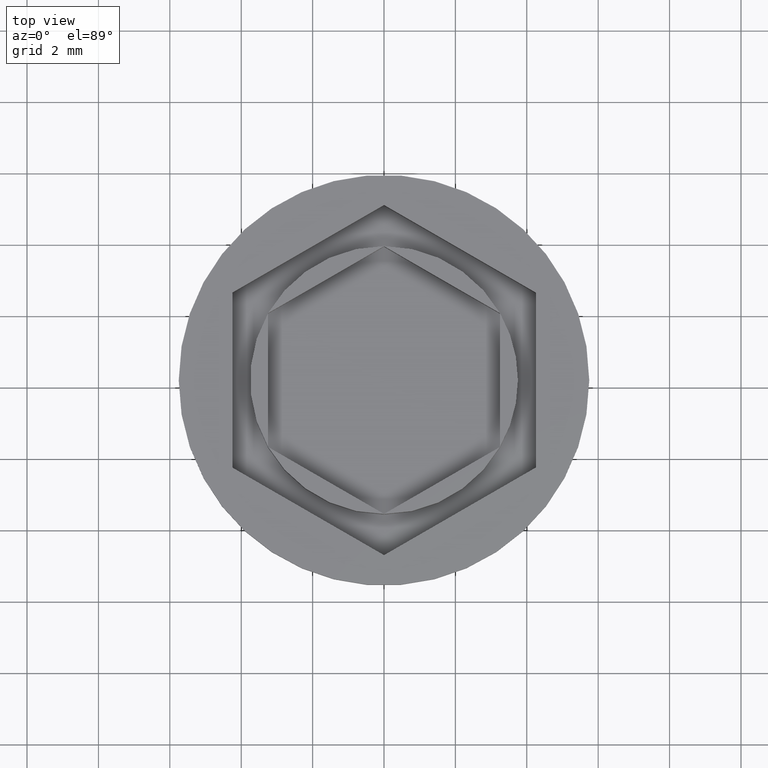
[diagram: clean part render]
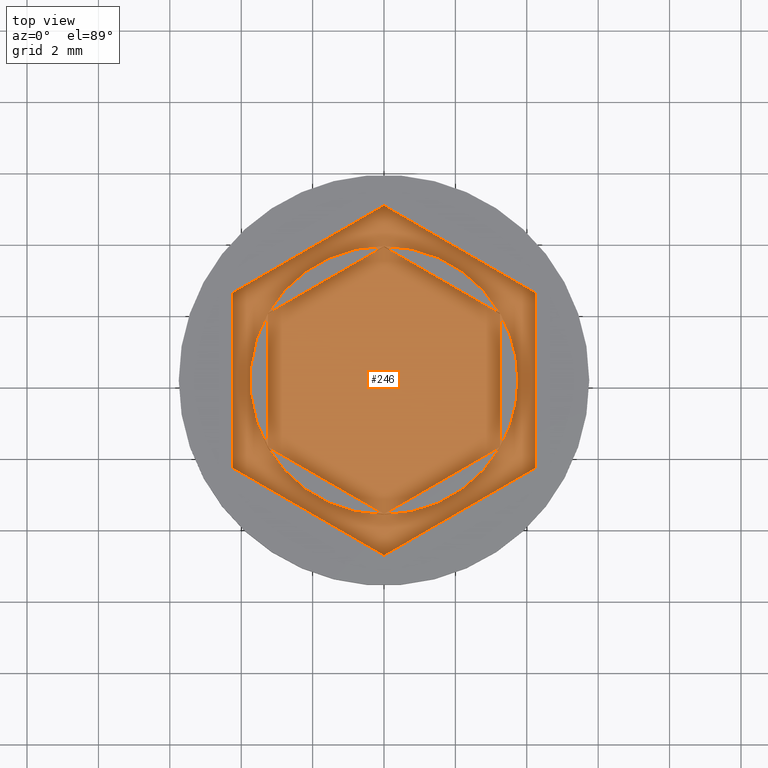
[diagram: same view with one face highlighted and labeled with its STEP entity id]
A machine part, top view. The second image highlights one B-rep face of the part: STEP entity #246.
In plain terms, the highlighted planar face has unit normal (-0, 0, 1).
Its self-contained STEP definition (entity closure, byte-faithful):
#9 = VECTOR ( 'NONE', #1991, 1000.000000000000000 ) ;
#12 = CIRCLE ( 'NONE', #977, 3.750000000000000444 ) ;
#21 = PLANE ( 'NONE',  #844 ) ;
#48 = ORIENTED_EDGE ( 'NONE', *, *, #1146, .T. ) ;
#51 = CARTESIAN_POINT ( 'NONE',  ( 0.000000000000000000, 0.000000000000000000, -1.000000000000000000 ) ) ;
#57 = CARTESIAN_POINT ( 'NONE',  ( -3.245185174601965095, -1.879168215605941050, -1.000000000000000888 ) ) ;
#61 = EDGE_CURVE ( 'NONE', #1672, #1626, #134, .T. ) ;
#63 = CARTESIAN_POINT ( 'NONE',  ( -3.250000000000000444, -1.876388374866284403, -1.000000000000000888 ) ) ;
#85 = VERTEX_POINT ( 'NONE', #1964 ) ;
#88 = CARTESIAN_POINT ( 'NONE',  ( -3.250000000000000444, 1.870828693386970887, -1.000000000000000888 ) ) ;
#100 = VECTOR ( 'NONE', #1044, 1000.000000000000000 ) ;
#102 = AXIS2_PLACEMENT_3D ( 'NONE', #859, #1471, #1445 ) ;
#114 = VECTOR ( 'NONE', #1477, 1000.000000000000000 ) ;
#123 = DIRECTION ( 'NONE',  ( 0.000000000000000000, 1.000000000000000000, -0.000000000000000000 ) ) ;
#134 = LINE ( 'NONE', #611, #100 ) ;
#174 = FACE_BOUND ( 'NONE', #400, .T. ) ;
#175 = CARTESIAN_POINT ( 'NONE',  ( 4.169697677648385935E-16, -3.752776749732567918, -1.000000000000000888 ) ) ;
#205 = EDGE_LOOP ( 'NONE', ( #1869, #1895, #1320 ) ) ;
#208 = VERTEX_POINT ( 'NONE', #1718 ) ;
#209 = CARTESIAN_POINT ( 'NONE',  ( 4.250000000000000000, -2.453738644055909024, -1.000000000000000000 ) ) ;
#219 = EDGE_CURVE ( 'NONE', #208, #1467, #722, .T. ) ;
#243 = CARTESIAN_POINT ( 'NONE',  ( -0.004814825398034329462, -3.749996908992911493, -1.000000000000000888 ) ) ;
#246 = ADVANCED_FACE ( 'NONE', ( #1887, #1248, #939, #1556, #1697, #174, #355 ), #21, .T. ) ;
#260 = ORIENTED_EDGE ( 'NONE', *, *, #894, .F. ) ;
#274 = LINE ( 'NONE', #1502, #595 ) ;
#282 = CARTESIAN_POINT ( 'NONE',  ( 0.000000000000000000, 0.000000000000000000, -1.000000000000000000 ) ) ;
#297 = AXIS2_PLACEMENT_3D ( 'NONE', #480, #1238, #323 ) ;
#319 = VERTEX_POINT ( 'NONE', #988 ) ;
#323 = DIRECTION ( 'NONE',  ( 1.000000000000000000, 0.000000000000000000, 0.000000000000000000 ) ) ;
#334 = VECTOR ( 'NONE', #363, 1000.000000000000000 ) ;
#338 = AXIS2_PLACEMENT_3D ( 'NONE', #418, #1493, #1048 ) ;
#340 = DIRECTION ( 'NONE',  ( -0.000000000000000000, 0.000000000000000000, 1.000000000000000000 ) ) ;
#355 = FACE_OUTER_BOUND ( 'NONE', #1604, .T. ) ;
#363 = DIRECTION ( 'NONE',  ( -0.8660254037844387076, 0.4999999999999999445, 0.000000000000000000 ) ) ;
#368 = VECTOR ( 'NONE', #586, 1000.000000000000114 ) ;
#396 = ORIENTED_EDGE ( 'NONE', *, *, #1036, .F. ) ;
#400 = EDGE_LOOP ( 'NONE', ( #1128, #1983 ) ) ;
#405 = ORIENTED_EDGE ( 'NONE', *, *, #61, .T. ) ;
#418 = CARTESIAN_POINT ( 'NONE',  ( 0.000000000000000000, 0.000000000000000000, -1.000000000000000000 ) ) ;
#427 = VECTOR ( 'NONE', #442, 1000.000000000000114 ) ;
#442 = DIRECTION ( 'NONE',  ( 0.8660254037844387076, 0.4999999999999998890, 0.000000000000000000 ) ) ;
#446 = VERTEX_POINT ( 'NONE', #243 ) ;
#447 = DIRECTION ( 'NONE',  ( 0.8660254037844388186, -0.4999999999999997224, 0.000000000000000000 ) ) ;
#480 = CARTESIAN_POINT ( 'NONE',  ( 0.000000000000000000, 0.000000000000000000, -1.000000000000000000 ) ) ;
#492 = VECTOR ( 'NONE', #447, 1000.000000000000114 ) ;
#495 = AXIS2_PLACEMENT_3D ( 'NONE', #282, #1159, #1785 ) ;
#505 = EDGE_CURVE ( 'NONE', #1473, #1455, #874, .T. ) ;
#523 = EDGE_CURVE ( 'NONE', #1455, #1473, #1527, .T. ) ;
#546 = CARTESIAN_POINT ( 'NONE',  ( 3.250000000000001332, 1.870828693386969110, -1.000000000000000888 ) ) ;
#551 = CARTESIAN_POINT ( 'NONE',  ( 3.250000000000000888, -1.876388374866283959, -1.000000000000000888 ) ) ;
#567 = CARTESIAN_POINT ( 'NONE',  ( 2.124999999999999112, 3.680607966083864646, -1.000000000000000000 ) ) ;
#572 = LINE ( 'NONE', #1472, #1431 ) ;
#586 = DIRECTION ( 'NONE',  ( -0.8660254037844387076, 0.4999999999999998890, 0.000000000000000000 ) ) ;
#595 = VECTOR ( 'NONE', #123, 1000.000000000000000 ) ;
#611 = CARTESIAN_POINT ( 'NONE',  ( -2.124999999999998224, -3.680607966083864646, -1.000000000000000000 ) ) ;
#615 = CARTESIAN_POINT ( 'NONE',  ( -0.004814825398034354616, 3.749996908992910605, -1.000000000000000888 ) ) ;
#636 = EDGE_CURVE ( 'NONE', #1538, #1724, #1521, .T. ) ;
#637 = CARTESIAN_POINT ( 'NONE',  ( -3.250000000000000444, -1.870828693386971109, -1.000000000000000888 ) ) ;
#674 = EDGE_CURVE ( 'NONE', #1707, #1672, #935, .T. ) ;
#710 = ORIENTED_EDGE ( 'NONE', *, *, #997, .F. ) ;
#722 = CIRCLE ( 'NONE', #297, 3.750000000000000444 ) ;
#735 = LINE ( 'NONE', #567, #368 ) ;
#770 = CARTESIAN_POINT ( 'NONE',  ( 0.000000000000000000, 0.000000000000000000, -1.000000000000000000 ) ) ;
#775 = DIRECTION ( 'NONE',  ( 1.000000000000000000, 0.000000000000000000, 0.000000000000000000 ) ) ;
#799 = DIRECTION ( 'NONE',  ( 0.8660254037844385966, 0.4999999999999999445, 0.000000000000000000 ) ) ;
#808 = EDGE_CURVE ( 'NONE', #446, #1867, #1433, .T. ) ;
#810 = DIRECTION ( 'NONE',  ( -0.000000000000000000, 0.000000000000000000, 1.000000000000000000 ) ) ;
#811 = DIRECTION ( 'NONE',  ( 1.000000000000000000, 0.000000000000000000, 0.000000000000000000 ) ) ;
#817 = VERTEX_POINT ( 'NONE', #209 ) ;
#836 = EDGE_LOOP ( 'NONE', ( #396, #1794 ) ) ;
#844 = AXIS2_PLACEMENT_3D ( 'NONE', #51, #340, #811 ) ;
#858 = ORIENTED_EDGE ( 'NONE', *, *, #1663, .T. ) ;
#859 = CARTESIAN_POINT ( 'NONE',  ( 0.000000000000000000, 0.000000000000000000, -1.000000000000000000 ) ) ;
#874 = CIRCLE ( 'NONE', #102, 3.750000000000000444 ) ;
#877 = VERTEX_POINT ( 'NONE', #1475 ) ;
#879 = CARTESIAN_POINT ( 'NONE',  ( 3.250000000000001332, 1.876388374866283959, -1.000000000000000888 ) ) ;
#894 = EDGE_CURVE ( 'NONE', #1448, #1808, #1358, .T. ) ;
#927 = EDGE_LOOP ( 'NONE', ( #710, #1784 ) ) ;
#935 = LINE ( 'NONE', #1981, #9 ) ;
#939 = FACE_BOUND ( 'NONE', #927, .T. ) ;
#942 = DIRECTION ( 'NONE',  ( 1.000000000000000000, 0.000000000000000000, 0.000000000000000000 ) ) ;
#947 = CIRCLE ( 'NONE', #338, 3.750000000000000444 ) ;
#954 = CARTESIAN_POINT ( 'NONE',  ( 0.000000000000000000, 0.000000000000000000, -1.000000000000000000 ) ) ;
#977 = AXIS2_PLACEMENT_3D ( 'NONE', #770, #1354, #775 ) ;
#988 = CARTESIAN_POINT ( 'NONE',  ( 3.245185174601966427, -1.879168215605939940, -1.000000000000000888 ) ) ;
#997 = EDGE_CURVE ( 'NONE', #1867, #446, #12, .T. ) ;
#1005 = CIRCLE ( 'NONE', #1230, 3.750000000000000444 ) ;
#1014 = LINE ( 'NONE', #551, #114 ) ;
#1026 = ORIENTED_EDGE ( 'NONE', *, *, #636, .F. ) ;
#1036 = EDGE_CURVE ( 'NONE', #1310, #319, #1005, .T. ) ;
#1044 = DIRECTION ( 'NONE',  ( 0.8660254037844388186, -0.4999999999999996669, 0.000000000000000000 ) ) ;
#1048 = DIRECTION ( 'NONE',  ( 1.000000000000000000, 0.000000000000000000, 0.000000000000000000 ) ) ;
#1050 = CARTESIAN_POINT ( 'NONE',  ( -4.250000000000000000, -2.453738644055909912, -1.000000000000000000 ) ) ;
#1081 = DIRECTION ( 'NONE',  ( -0.8660254037844384856, -0.5000000000000002220, 0.000000000000000000 ) ) ;
#1090 = ORIENTED_EDGE ( 'NONE', *, *, #1124, .T. ) ;
#1102 = VECTOR ( 'NONE', #799, 1000.000000000000114 ) ;
#1118 = DIRECTION ( 'NONE',  ( 1.000000000000000000, 0.000000000000000000, 0.000000000000000000 ) ) ;
#1120 = CARTESIAN_POINT ( 'NONE',  ( 0.004814825398035460502, -3.749996908992911049, -1.000000000000000888 ) ) ;
#1122 = DIRECTION ( 'NONE',  ( -0.000000000000000000, 0.000000000000000000, 1.000000000000000000 ) ) ;
#1124 = EDGE_CURVE ( 'NONE', #85, #877, #735, .T. ) ;
#1128 = ORIENTED_EDGE ( 'NONE', *, *, #505, .F. ) ;
#1144 = ORIENTED_EDGE ( 'NONE', *, *, #1483, .F. ) ;
#1146 = EDGE_CURVE ( 'NONE', #817, #85, #274, .T. ) ;
#1147 = ORIENTED_EDGE ( 'NONE', *, *, #1837, .F. ) ;
#1153 = EDGE_CURVE ( 'NONE', #1626, #817, #1970, .T. ) ;
#1159 = DIRECTION ( 'NONE',  ( -0.000000000000000000, 0.000000000000000000, 1.000000000000000000 ) ) ;
#1160 = EDGE_LOOP ( 'NONE', ( #1147, #1026 ) ) ;
#1181 = CARTESIAN_POINT ( 'NONE',  ( 0.004814825398033462100, 3.749996908992911049, -1.000000000000000888 ) ) ;
#1230 = AXIS2_PLACEMENT_3D ( 'NONE', #954, #1122, #942 ) ;
#1233 = VECTOR ( 'NONE', #1583, 1000.000000000000114 ) ;
#1235 = CIRCLE ( 'NONE', #1723, 3.750000000000000444 ) ;
#1238 = DIRECTION ( 'NONE',  ( -0.000000000000000000, 0.000000000000000000, 1.000000000000000000 ) ) ;
#1248 = FACE_BOUND ( 'NONE', #836, .T. ) ;
#1310 = VERTEX_POINT ( 'NONE', #1120 ) ;
#1316 = EDGE_CURVE ( 'NONE', #319, #1310, #1751, .T. ) ;
#1320 = ORIENTED_EDGE ( 'NONE', *, *, #219, .F. ) ;
#1332 = CARTESIAN_POINT ( 'NONE',  ( 3.245185174601963762, 1.879168215605941938, -1.000000000000000888 ) ) ;
#1350 = CARTESIAN_POINT ( 'NONE',  ( -2.125000000000000444, 3.680607966083863758, -1.000000000000000000 ) ) ;
#1354 = DIRECTION ( 'NONE',  ( -0.000000000000000000, 0.000000000000000000, 1.000000000000000000 ) ) ;
#1358 = CIRCLE ( 'NONE', #495, 3.750000000000000444 ) ;
#1364 = LINE ( 'NONE', #1350, #1817 ) ;
#1431 = VECTOR ( 'NONE', #1447, 1000.000000000000000 ) ;
#1433 = LINE ( 'NONE', #63, #334 ) ;
#1445 = DIRECTION ( 'NONE',  ( 1.000000000000000000, 0.000000000000000000, 0.000000000000000000 ) ) ;
#1447 = DIRECTION ( 'NONE',  ( 0.000000000000000000, 1.000000000000000000, 0.000000000000000000 ) ) ;
#1448 = VERTEX_POINT ( 'NONE', #88 ) ;
#1455 = VERTEX_POINT ( 'NONE', #1181 ) ;
#1467 = VERTEX_POINT ( 'NONE', #546 ) ;
#1471 = DIRECTION ( 'NONE',  ( -0.000000000000000000, 0.000000000000000000, 1.000000000000000000 ) ) ;
#1472 = CARTESIAN_POINT ( 'NONE',  ( -3.250000000000000444, 1.876388374866283293, -1.000000000000000888 ) ) ;
#1473 = VERTEX_POINT ( 'NONE', #1332 ) ;
#1475 = CARTESIAN_POINT ( 'NONE',  ( 4.336808689942017736E-16, 4.907477288111819824, -1.000000000000000000 ) ) ;
#1477 = DIRECTION ( 'NONE',  ( -1.155626614413199331E-16, -1.000000000000000000, 0.000000000000000000 ) ) ;
#1483 = EDGE_CURVE ( 'NONE', #1808, #1448, #572, .T. ) ;
#1493 = DIRECTION ( 'NONE',  ( -0.000000000000000000, 0.000000000000000000, 1.000000000000000000 ) ) ;
#1502 = CARTESIAN_POINT ( 'NONE',  ( 4.250000000000000000, 0.000000000000000000, -1.000000000000000000 ) ) ;
#1521 = LINE ( 'NONE', #1671, #1102 ) ;
#1527 = LINE ( 'NONE', #879, #492 ) ;
#1538 = VERTEX_POINT ( 'NONE', #1792 ) ;
#1540 = ORIENTED_EDGE ( 'NONE', *, *, #1153, .T. ) ;
#1556 = FACE_BOUND ( 'NONE', #1695, .T. ) ;
#1583 = DIRECTION ( 'NONE',  ( -0.8660254037844385966, -0.5000000000000001110, 0.000000000000000000 ) ) ;
#1604 = EDGE_LOOP ( 'NONE', ( #48, #1090, #858, #1924, #405, #1540 ) ) ;
#1626 = VERTEX_POINT ( 'NONE', #1674 ) ;
#1663 = EDGE_CURVE ( 'NONE', #877, #1707, #1364, .T. ) ;
#1671 = CARTESIAN_POINT ( 'NONE',  ( 0.000000000000000000, 3.752776749732567030, -1.000000000000000888 ) ) ;
#1672 = VERTEX_POINT ( 'NONE', #1050 ) ;
#1674 = CARTESIAN_POINT ( 'NONE',  ( 0.000000000000000000, -4.907477288111818048, -1.000000000000000000 ) ) ;
#1695 = EDGE_LOOP ( 'NONE', ( #260, #1144 ) ) ;
#1697 = FACE_BOUND ( 'NONE', #1160, .T. ) ;
#1707 = VERTEX_POINT ( 'NONE', #1834 ) ;
#1718 = CARTESIAN_POINT ( 'NONE',  ( 3.750000000000000444, 0.000000000000000000, -1.000000000000000000 ) ) ;
#1723 = AXIS2_PLACEMENT_3D ( 'NONE', #1864, #810, #1118 ) ;
#1724 = VERTEX_POINT ( 'NONE', #615 ) ;
#1751 = LINE ( 'NONE', #175, #1233 ) ;
#1777 = EDGE_CURVE ( 'NONE', #1917, #208, #1235, .T. ) ;
#1784 = ORIENTED_EDGE ( 'NONE', *, *, #808, .F. ) ;
#1785 = DIRECTION ( 'NONE',  ( 1.000000000000000000, 0.000000000000000000, 0.000000000000000000 ) ) ;
#1792 = CARTESIAN_POINT ( 'NONE',  ( -3.245185174601965539, 1.879168215605939718, -1.000000000000000888 ) ) ;
#1794 = ORIENTED_EDGE ( 'NONE', *, *, #1316, .F. ) ;
#1808 = VERTEX_POINT ( 'NONE', #637 ) ;
#1814 = CARTESIAN_POINT ( 'NONE',  ( 3.250000000000000888, -1.870828693386969999, -1.000000000000000888 ) ) ;
#1817 = VECTOR ( 'NONE', #1081, 1000.000000000000114 ) ;
#1823 = CARTESIAN_POINT ( 'NONE',  ( 2.124999999999998668, -3.680607966083863758, -1.000000000000000000 ) ) ;
#1834 = CARTESIAN_POINT ( 'NONE',  ( -4.250000000000000000, 2.453738644055909024, -1.000000000000000000 ) ) ;
#1837 = EDGE_CURVE ( 'NONE', #1724, #1538, #947, .T. ) ;
#1864 = CARTESIAN_POINT ( 'NONE',  ( 0.000000000000000000, 0.000000000000000000, -1.000000000000000000 ) ) ;
#1867 = VERTEX_POINT ( 'NONE', #57 ) ;
#1869 = ORIENTED_EDGE ( 'NONE', *, *, #1777, .F. ) ;
#1887 = FACE_BOUND ( 'NONE', #205, .T. ) ;
#1895 = ORIENTED_EDGE ( 'NONE', *, *, #1977, .F. ) ;
#1917 = VERTEX_POINT ( 'NONE', #1814 ) ;
#1924 = ORIENTED_EDGE ( 'NONE', *, *, #674, .T. ) ;
#1964 = CARTESIAN_POINT ( 'NONE',  ( 4.250000000000000000, 2.453738644055909912, -1.000000000000000000 ) ) ;
#1970 = LINE ( 'NONE', #1823, #427 ) ;
#1977 = EDGE_CURVE ( 'NONE', #1467, #1917, #1014, .T. ) ;
#1981 = CARTESIAN_POINT ( 'NONE',  ( -4.250000000000000000, 0.000000000000000000, -1.000000000000000000 ) ) ;
#1983 = ORIENTED_EDGE ( 'NONE', *, *, #523, .F. ) ;
#1991 = DIRECTION ( 'NONE',  ( 0.000000000000000000, -1.000000000000000000, 0.000000000000000000 ) ) ;